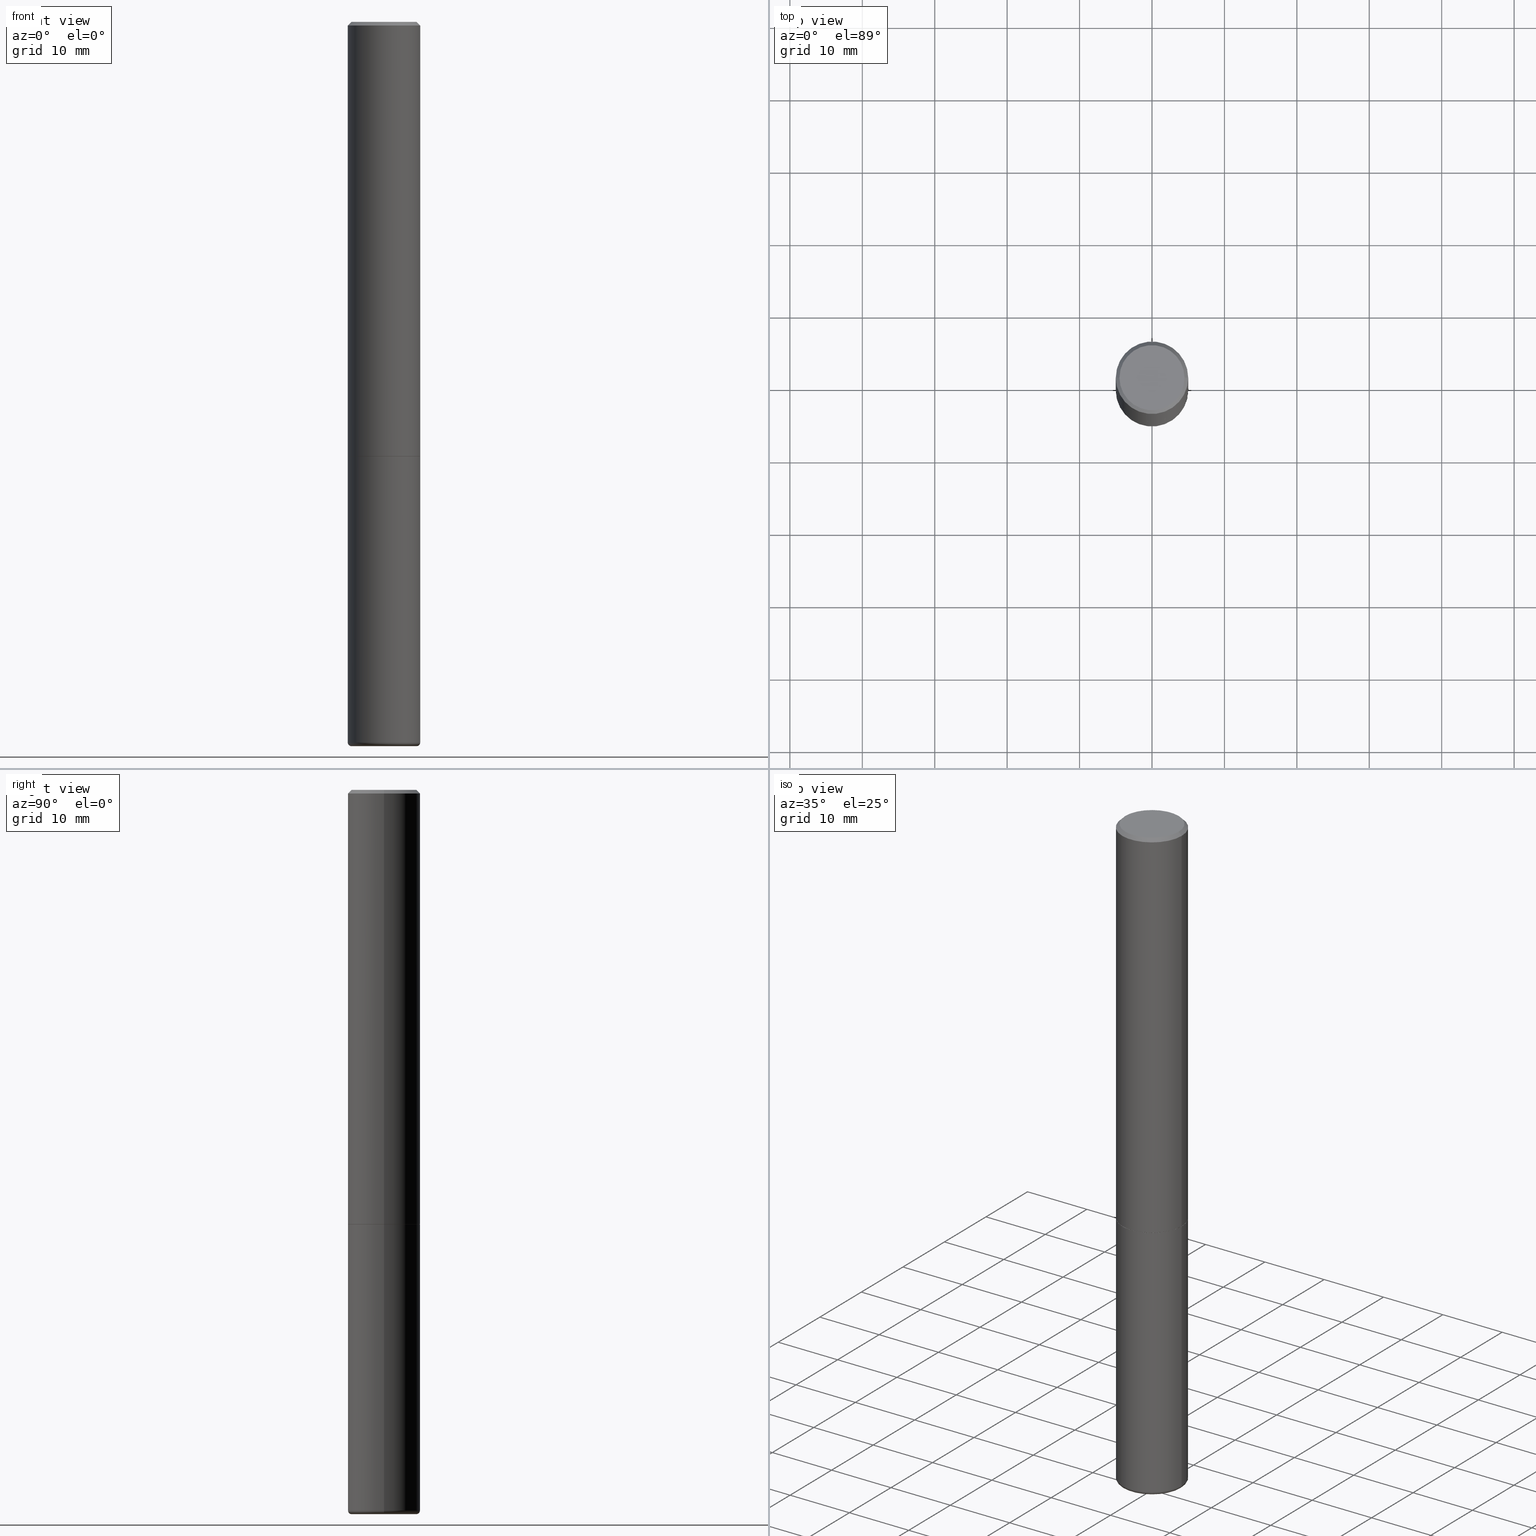
[diagram: canonical four-view strip — front | top / right | iso, engineering-drawing reading convention]
A machine part, canonical four-view strip (front | top / right | iso — engineering-drawing reading convention). The complete STEP part file that produces these views, byte-faithful:
ISO-10303-21;
HEADER;
FILE_DESCRIPTION (( 'STEP AP203' ),
    '1' );
FILE_NAME ('74427.STEP',
    '2024-03-06T15:13:18',
    ( '' ),
    ( '' ),
    'SwSTEP 2.0',
    'SolidWorks 2023',
    '' );
FILE_SCHEMA (( 'CONFIG_CONTROL_DESIGN' ));
ENDSEC;

DATA;
#1 = ORIENTED_EDGE ( 'NONE', *, *, #344, .F. ) ;
#2 = PERSON_AND_ORGANIZATION ( #64, #342 ) ;
#3 = AXIS2_PLACEMENT_3D ( 'NONE', #282, #325, #405 ) ;
#4 = DIRECTION ( 'NONE',  ( -2.445468806185136877E-29, 3.491481338843145188E-15, 1.000000000000000000 ) ) ;
#5 = CC_DESIGN_APPROVAL ( #89, ( #206 ) ) ;
#6 = LINE ( 'NONE', #87, #49 ) ;
#7 = DIRECTION ( 'NONE',  ( -1.000000000000000000, 7.105427357600965571E-15, 0.000000000000000000 ) ) ;
#8 = APPROVAL_ROLE ( '' ) ;
#9 = APPLICATION_CONTEXT ( 'configuration controlled 3d designs of mechanical parts and assemblies' ) ;
#10 = FACE_OUTER_BOUND ( 'NONE', #156, .T. ) ;
#11 = DATE_TIME_ROLE ( 'creation_date' ) ;
#12 = CARTESIAN_POINT ( 'NONE',  ( 0.1768499999999998407, -1.316798864272041549E-15, 2.219626494852302982E-16 ) ) ;
#13 = ORIENTED_EDGE ( 'NONE', *, *, #400, .T. ) ;
#14 = TOROIDAL_SURFACE ( 'NONE', #247, 0.1771500000000000019, 0.01969999999999987733 ) ;
#15 = EDGE_CURVE ( 'NONE', #94, #182, #236, .T. ) ;
#16 = VERTEX_POINT ( 'NONE', #36 ) ;
#17 = CONICAL_SURFACE ( 'NONE', #410, 0.1958499999999999963, 0.7853981633975507526 ) ;
#18 = VERTEX_POINT ( 'NONE', #310 ) ;
#19 = DIRECTION ( 'NONE',  ( -2.445468806185136877E-29, 3.491481338843145188E-15, 1.000000000000000000 ) ) ;
#20 = CARTESIAN_POINT ( 'NONE',  ( -0.1968500000000000527, 1.304766576325678902E-15, -0.02000000000000004205 ) ) ;
#21 = ORIENTED_EDGE ( 'NONE', *, *, #372, .T. ) ;
#22 = DIRECTION ( 'NONE',  ( -1.000000000000000000, 6.982962677686266711E-15, 0.000000000000000000 ) ) ;
#23 = EDGE_CURVE ( 'NONE', #355, #165, #242, .T. ) ;
#24 = CARTESIAN_POINT ( 'NONE',  ( 0.1958499999999999963, -9.615190459040133643E-15, -2.362199999999999633 ) ) ;
#25 = DIRECTION ( 'NONE',  ( 0.7071067811865462405, -7.319954787623251312E-15, -0.7071067811865486830 ) ) ;
#26 = ORIENTED_EDGE ( 'NONE', *, *, #95, .F. ) ;
#27 = AXIS2_PLACEMENT_3D ( 'NONE', #301, #115, #7 ) ;
#28 =( CONVERSION_BASED_UNIT ( 'INCH', #70 ) LENGTH_UNIT ( ) NAMED_UNIT ( #281 ) );
#29 = VERTEX_POINT ( 'NONE', #243 ) ;
#30 =( NAMED_UNIT ( * ) SI_UNIT ( $, .STERADIAN. ) SOLID_ANGLE_UNIT ( ) );
#31 = CARTESIAN_POINT ( 'NONE',  ( 9.579634954469036932E-29, -1.367717984865025539E-14, -3.917300000000000448 ) ) ;
#32 = ORIENTED_EDGE ( 'NONE', *, *, #372, .F. ) ;
#33 = DIRECTION ( 'NONE',  ( 1.000000000000000000, -6.982962677686268288E-15, 0.000000000000000000 ) ) ;
#34 = CARTESIAN_POINT ( 'NONE',  ( 1.234936949548815012E-15, 0.1768499999999998407, -5.064871500317991731E-16 ) ) ;
#35 = ORIENTED_EDGE ( 'NONE', *, *, #413, .T. ) ;
#36 = CARTESIAN_POINT ( 'NONE',  ( 0.1968500000000000250, -9.622173421717819657E-15, -2.362199999999999633 ) ) ;
#37 = APPROVAL ( #398, 'UNSPECIFIED' ) ;
#38 = DIRECTION ( 'NONE',  ( -2.445468806185136597E-29, 3.491481338843145583E-15, 1.000000000000000000 ) ) ;
#39 = EDGE_CURVE ( 'NONE', #18, #355, #339, .T. ) ;
#40 = AXIS2_PLACEMENT_3D ( 'NONE', #169, #103, #59 ) ;
#41 = DIRECTION ( 'NONE',  ( -2.445468806185136597E-29, 3.491481338843145583E-15, 1.000000000000000000 ) ) ;
#42 = PERSON_AND_ORGANIZATION_ROLE ( 'design_supplier' ) ;
#43 = CARTESIAN_POINT ( 'NONE',  ( -0.1958499999999999963, -6.850680816280898078E-15, -2.362199999999999633 ) ) ;
#44 = EDGE_CURVE ( 'NONE', #251, #191, #213, .T. ) ;
#45 = APPROVAL_ROLE ( '' ) ;
#46 = COORDINATED_UNIVERSAL_TIME_OFFSET ( 5, 0, .BEHIND. ) ;
#47 = DIRECTION ( 'NONE',  ( -0.7071067811866199593, 7.493145998870616062E-15, 0.7071067811864750752 ) ) ;
#48 = AXIS2_PLACEMENT_3D ( 'NONE', #328, #38, #33 ) ;
#49 = VECTOR ( 'NONE', #47, 39.37007874015748143 ) ;
#50 = CALENDAR_DATE ( 2024, 6, 3 ) ;
#51 = ORIENTED_EDGE ( 'NONE', *, *, #417, .F. ) ;
#52 = AXIS2_PLACEMENT_3D ( 'NONE', #147, #365, #83 ) ;
#53 = DIRECTION ( 'NONE',  ( -2.445468806185136597E-29, 3.491481338843145583E-15, 1.000000000000000000 ) ) ;
#54 = LOCAL_TIME ( 10, 13, 18.00000000000000000, #222 ) ;
#55 = EDGE_CURVE ( 'NONE', #159, #165, #323, .T. ) ;
#56 = ORIENTED_EDGE ( 'NONE', *, *, #171, .F. ) ;
#57 = EDGE_CURVE ( 'NONE', #202, #29, #143, .T. ) ;
#58 = CARTESIAN_POINT ( 'NONE',  ( -0.1968500000000000250, -9.563675158289009718E-15, -2.362199999999999633 ) ) ;
#59 = DIRECTION ( 'NONE',  ( 1.000000000000000000, -6.982962677686269866E-15, 0.000000000000000000 ) ) ;
#60 = CARTESIAN_POINT ( 'NONE',  ( 5.776686413970529753E-29, -8.247577218615278049E-15, -2.362199999999999633 ) ) ;
#61 = ORIENTED_EDGE ( 'NONE', *, *, #309, .F. ) ;
#62 = EDGE_LOOP ( 'NONE', ( #387, #351, #385, #32 ) ) ;
#63 = DIRECTION ( 'NONE',  ( 1.000000000000000000, -6.982962677686266711E-15, 4.876176775795935793E-29 ) ) ;
#64 = PERSON ( 'UNSPECIFIED', 'UNSPECIFIED', 'UNSPECIFIED', ('UNSPECIFIED'), ('UNSPECIFIED'), ('UNSPECIFIED') ) ;
#65 = CARTESIAN_POINT ( 'NONE',  ( 0.000000000000000000, 0.000000000000000000, 0.000000000000000000 ) ) ;
#66 = PERSON_AND_ORGANIZATION ( #64, #342 ) ;
#67 = ORIENTED_EDGE ( 'NONE', *, *, #197, .F. ) ;
#68 = ORIENTED_EDGE ( 'NONE', *, *, #15, .T. ) ;
#69 = ORIENTED_EDGE ( 'NONE', *, *, #400, .F. ) ;
#70 = LENGTH_MEASURE_WITH_UNIT ( LENGTH_MEASURE( 0.02539999999999999897 ), #231 );
#71 = EDGE_LOOP ( 'NONE', ( #322, #379, #13, #401 ) ) ;
#72 = CARTESIAN_POINT ( 'NONE',  ( -0.1968499999999999417, -1.227847647330649996E-14, -3.917300000000000448 ) ) ;
#73 = LINE ( 'NONE', #293, #335 ) ;
#74 = CLOSED_SHELL ( 'NONE', ( #125, #292, #241, #258, #392, #348, #119, #386 ) ) ;
#75 = CIRCLE ( 'NONE', #366, 0.1958499999999999963 ) ;
#76 = PERSON_AND_ORGANIZATION ( #64, #342 ) ;
#77 = EDGE_CURVE ( 'NONE', #165, #159, #311, .T. ) ;
#78 = CARTESIAN_POINT ( 'NONE',  ( 0.1968500000000001915, -1.374596203102542989E-15, 9.598753983154309266E-30 ) ) ;
#79 = DIRECTION ( 'NONE',  ( -2.445468806185136597E-29, 3.491481338843145583E-15, 1.000000000000000000 ) ) ;
#80 = PERSON_AND_ORGANIZATION ( #64, #342 ) ;
#81 = VECTOR ( 'NONE', #160, 39.37007874015748854 ) ;
#82 = DIRECTION ( 'NONE',  ( -2.445468806185136597E-29, 3.491481338843145583E-15, 1.000000000000000000 ) ) ;
#83 = DIRECTION ( 'NONE',  ( 1.000000000000000000, -6.982962677686261977E-15, 4.883557194083110659E-29 ) ) ;
#84 = EDGE_CURVE ( 'NONE', #191, #251, #104, .T. ) ;
#85 = DATE_TIME_ROLE ( 'classification_date' ) ;
#86 = EDGE_LOOP ( 'NONE', ( #371, #230, #172, #51 ) ) ;
#87 = CARTESIAN_POINT ( 'NONE',  ( -0.1958499999999999963, -6.855979270629121269E-15, -2.362199999999999633 ) ) ;
#88 = AXIS2_PLACEMENT_3D ( 'NONE', #266, #338, #336 ) ;
#89 = APPROVAL ( #131, 'UNSPECIFIED' ) ;
#90 = VECTOR ( 'NONE', #19, 39.37007874015748143 ) ;
#91 = ORIENTED_EDGE ( 'NONE', *, *, #84, .T. ) ;
#92 = ORIENTED_EDGE ( 'NONE', *, *, #77, .F. ) ;
#93 = TOROIDAL_SURFACE ( 'NONE', #52, 0.1771500000000000019, 0.01969999999999987733 ) ;
#94 = VERTEX_POINT ( 'NONE', #43 ) ;
#95 = EDGE_CURVE ( 'NONE', #94, #18, #6, .T. ) ;
#96 = EDGE_LOOP ( 'NONE', ( #35, #345 ) ) ;
#97 = PLANE ( 'NONE',  #237 ) ;
#98 = CYLINDRICAL_SURFACE ( 'NONE', #253, 0.1968500000000001915 ) ;
#99 = ORIENTED_EDGE ( 'NONE', *, *, #23, .F. ) ;
#100 = CARTESIAN_POINT ( 'NONE',  ( 4.890937612370283668E-31, -6.982962677686305168E-17, -0.02000000000000004205 ) ) ;
#101 = DESIGN_CONTEXT ( 'detailed design', #9, 'design' ) ;
#102 = EDGE_LOOP ( 'NONE', ( #307, #133, #374, #61 ) ) ;
#103 = DIRECTION ( 'NONE',  ( -2.445468806185136597E-29, 3.491481338843145583E-15, 1.000000000000000000 ) ) ;
#104 = CIRCLE ( 'NONE', #394, 0.1768499999999998407 ) ;
#105 = AXIS2_PLACEMENT_3D ( 'NONE', #346, #189, #123 ) ;
#106 = PRODUCT ( '74427', '74427', '', ( #246 ) ) ;
#107 = PLANE ( 'NONE',  #155 ) ;
#108 = DIRECTION ( 'NONE',  ( 1.000000000000000000, -6.982962677686266711E-15, 4.876176775795935793E-29 ) ) ;
#109 = EDGE_LOOP ( 'NONE', ( #257, #278, #403, #69 ) ) ;
#110 = VECTOR ( 'NONE', #4, 39.37007874015748143 ) ;
#111 = AXIS2_PLACEMENT_3D ( 'NONE', #118, #361, #114 ) ;
#112 = EDGE_CURVE ( 'NONE', #355, #18, #221, .T. ) ;
#113 = EDGE_CURVE ( 'NONE', #202, #265, #163, .T. ) ;
#114 = DIRECTION ( 'NONE',  ( 1.000000000000000000, -6.982962677686270655E-15, 0.000000000000000000 ) ) ;
#115 = DIRECTION ( 'NONE',  ( 7.105427357601001859E-15, 1.000000000000000000, -3.491481338843145583E-15 ) ) ;
#116 = CIRCLE ( 'NONE', #40, 0.1968499999999999694 ) ;
#117 = LOCAL_TIME ( 10, 13, 18.00000000000000000, #46 ) ;
#118 = CARTESIAN_POINT ( 'NONE',  ( 9.627810689950883669E-29, -1.374596203102546341E-14, -3.937000000000000277 ) ) ;
#119 = ADVANCED_FACE ( 'NONE', ( #10 ), #97, .F. ) ;
#120 = CARTESIAN_POINT ( 'NONE',  ( 5.776686413970529753E-29, -8.247577218615278049E-15, -2.362199999999999633 ) ) ;
#121 = AXIS2_PLACEMENT_3D ( 'NONE', #31, #261, #161 ) ;
#122 = VERTEX_POINT ( 'NONE', #72 ) ;
#123 = DIRECTION ( 'NONE',  ( 1.000000000000000000, 0.000000000000000000, 0.000000000000000000 ) ) ;
#124 = CARTESIAN_POINT ( 'NONE',  ( 0.1968499999999999417, -1.505177605175279857E-14, -3.917300000000000448 ) ) ;
#125 = ADVANCED_FACE ( 'NONE', ( #203 ), #288, .T. ) ;
#126 = DIRECTION ( 'NONE',  ( -2.445468806185136597E-29, 3.491481338843145583E-15, 1.000000000000000000 ) ) ;
#127 = APPLICATION_PROTOCOL_DEFINITION ( 'international standard', 'config_control_design', 1994, #9 ) ;
#128 = AXIS2_PLACEMENT_3D ( 'NONE', #240, #300, #207 ) ;
#129 = DIRECTION ( 'NONE',  ( 1.000000000000000000, -6.982962677686262766E-15, 0.000000000000000000 ) ) ;
#130 = SECURITY_CLASSIFICATION ( '', '', #397 ) ;
#131 = APPROVAL_STATUS ( 'not_yet_approved' ) ;
#132 = DIRECTION ( 'NONE',  ( 1.000000000000000000, -6.982962677686268288E-15, 0.000000000000000000 ) ) ;
#133 = ORIENTED_EDGE ( 'NONE', *, *, #211, .T. ) ;
#134 = LINE ( 'NONE', #321, #228 ) ;
#135 = APPROVAL_DATE_TIME ( #260, #89 ) ;
#136 = FACE_OUTER_BOUND ( 'NONE', #399, .T. ) ;
#137 = AXIS2_PLACEMENT_3D ( 'NONE', #289, #412, #259 ) ;
#138 = AXIS2_PLACEMENT_3D ( 'NONE', #408, #126, #129 ) ;
#139 = PLANE ( 'NONE',  #340 ) ;
#140 = ORIENTED_EDGE ( 'NONE', *, *, #286, .F. ) ;
#141 = EDGE_CURVE ( 'NONE', #29, #122, #196, .T. ) ;
#142 = EDGE_LOOP ( 'NONE', ( #184, #227, #92, #99 ) ) ;
#143 = CIRCLE ( 'NONE', #111, 0.1771500000000000574 ) ;
#144 = CARTESIAN_POINT ( 'NONE',  ( 4.890937612370283668E-31, -6.982962677686305168E-17, -0.02000000000000004205 ) ) ;
#145 = CC_DESIGN_PERSON_AND_ORGANIZATION_ASSIGNMENT ( #66, #284, ( #106 ) ) ;
#146 = DIRECTION ( 'NONE',  ( 1.000000000000000000, -6.982962677686269077E-15, 0.000000000000000000 ) ) ;
#147 = CARTESIAN_POINT ( 'NONE',  ( 9.579634954469036932E-29, -1.367717984865025539E-14, -3.917300000000000448 ) ) ;
#148 = DATE_AND_TIME ( #396, #215 ) ;
#149 = APPROVAL_DATE_TIME ( #176, #409 ) ;
#150 = ORIENTED_EDGE ( 'NONE', *, *, #44, .T. ) ;
#151 = CARTESIAN_POINT ( 'NONE',  ( 5.774240945164344150E-29, -8.244085737276433464E-15, -2.361199999999999743 ) ) ;
#152 = ORIENTED_EDGE ( 'NONE', *, *, #141, .T. ) ;
#153 = ADVANCED_FACE ( 'NONE', ( #331 ), #139, .T. ) ;
#154 = ORIENTED_EDGE ( 'NONE', *, *, #57, .F. ) ;
#155 = AXIS2_PLACEMENT_3D ( 'NONE', #34, #285, #407 ) ;
#156 = EDGE_LOOP ( 'NONE', ( #56, #217 ) ) ;
#157 = CC_DESIGN_PERSON_AND_ORGANIZATION_ASSIGNMENT ( #2, #337, ( #130 ) ) ;
#158 = FACE_OUTER_BOUND ( 'NONE', #71, .T. ) ;
#159 = VERTEX_POINT ( 'NONE', #320 ) ;
#160 = DIRECTION ( 'NONE',  ( -0.7071067811865462405, 2.468850131082243650E-15, -0.7071067811865486830 ) ) ;
#161 = DIRECTION ( 'NONE',  ( 1.000000000000000000, -6.982962677686269866E-15, 0.000000000000000000 ) ) ;
#162 = AXIS2_PLACEMENT_3D ( 'NONE', #298, #82, #270 ) ;
#163 = CIRCLE ( 'NONE', #294, 0.01969999999999989468 ) ;
#164 = APPROVAL_PERSON_ORGANIZATION ( #273, #37, #8 ) ;
#165 = VERTEX_POINT ( 'NONE', #352 ) ;
#166 = DIRECTION ( 'NONE',  ( -2.445468806185136877E-29, 3.491481338843145188E-15, 1.000000000000000000 ) ) ;
#167 = LINE ( 'NONE', #383, #90 ) ;
#168 = COORDINATED_UNIVERSAL_TIME_OFFSET ( 5, 0, .BEHIND. ) ;
#169 = CARTESIAN_POINT ( 'NONE',  ( 9.579634954469036932E-29, -1.367717984865025539E-14, -3.917300000000000448 ) ) ;
#170 = DIRECTION ( 'NONE',  ( -2.445468806185136597E-29, 3.491481338843145583E-15, 1.000000000000000000 ) ) ;
#171 = EDGE_CURVE ( 'NONE', #182, #94, #75, .T. ) ;
#172 = ORIENTED_EDGE ( 'NONE', *, *, #309, .T. ) ;
#173 = VECTOR ( 'NONE', #166, 39.37007874015748143 ) ;
#174 = CARTESIAN_POINT ( 'NONE',  ( -5.428027354543142984E-45, 7.749784485978325769E-31, 2.219626494852213988E-16 ) ) ;
#175 = DIRECTION ( 'NONE',  ( 1.000000000000000000, -6.982962677686268288E-15, 0.000000000000000000 ) ) ;
#176 = DATE_AND_TIME ( #364, #333 ) ;
#177 = DIRECTION ( 'NONE',  ( 1.000000000000000000, -6.982962677686266711E-15, 0.000000000000000000 ) ) ;
#178 = ORIENTED_EDGE ( 'NONE', *, *, #197, .T. ) ;
#179 = DIRECTION ( 'NONE',  ( 1.000000000000000000, -6.982962677686266711E-15, 0.000000000000000000 ) ) ;
#180 = CC_DESIGN_DATE_AND_TIME_ASSIGNMENT ( #181, #85, ( #130 ) ) ;
#181 = DATE_AND_TIME ( #368, #117 ) ;
#182 = VERTEX_POINT ( 'NONE', #24 ) ;
#183 = ADVANCED_FACE ( 'NONE', ( #375 ), #93, .T. ) ;
#184 = ORIENTED_EDGE ( 'NONE', *, *, #112, .T. ) ;
#185 = LINE ( 'NONE', #291, #389 ) ;
#186 = CIRCLE ( 'NONE', #138, 0.1968500000000000250 ) ;
#187 = PRODUCT_DEFINITION_FORMATION_WITH_SPECIFIED_SOURCE ( 'ANY', '', #106, .NOT_KNOWN. ) ;
#188 = DIRECTION ( 'NONE',  ( -1.000000000000000000, 6.982962677686265922E-15, -4.876176775795935793E-29 ) ) ;
#189 = DIRECTION ( 'NONE',  ( 0.000000000000000000, 0.000000000000000000, 1.000000000000000000 ) ) ;
#190 = DIRECTION ( 'NONE',  ( 1.000000000000000000, -6.982962677686266711E-15, 4.876176775795935793E-29 ) ) ;
#191 = VERTEX_POINT ( 'NONE', #12 ) ;
#192 = FACE_OUTER_BOUND ( 'NONE', #109, .T. ) ;
#193 = DIRECTION ( 'NONE',  ( -2.445468806185136597E-29, 3.491481338843145583E-15, 1.000000000000000000 ) ) ;
#194 = FACE_OUTER_BOUND ( 'NONE', #96, .T. ) ;
#195 = DIRECTION ( 'NONE',  ( -2.438088387897960049E-29, 3.491481338843145188E-15, 1.000000000000000000 ) ) ;
#196 = CIRCLE ( 'NONE', #27, 0.01969999999999989468 ) ;
#197 = EDGE_CURVE ( 'NONE', #29, #202, #299, .T. ) ;
#198 = EDGE_LOOP ( 'NONE', ( #26, #68, #21, #250 ) ) ;
#199 = FACE_OUTER_BOUND ( 'NONE', #102, .T. ) ;
#200 = ORIENTED_EDGE ( 'NONE', *, *, #113, .T. ) ;
#201 = FACE_OUTER_BOUND ( 'NONE', #86, .T. ) ;
#202 = VERTEX_POINT ( 'NONE', #406 ) ;
#203 = FACE_OUTER_BOUND ( 'NONE', #62, .T. ) ;
#204 = CC_DESIGN_DATE_AND_TIME_ASSIGNMENT ( #249, #11, ( #206 ) ) ;
#205 = CONICAL_SURFACE ( 'NONE', #3, 0.1968500000000000527, 0.7853981633974466137 ) ;
#206 = PRODUCT_DEFINITION ( 'UNKNOWN', '', #187, #101 ) ;
#207 = DIRECTION ( 'NONE',  ( 1.000000000000000000, -6.982962677686266711E-15, 0.000000000000000000 ) ) ;
#208 = AXIS2_PLACEMENT_3D ( 'NONE', #391, #170, #108 ) ;
#209 = APPROVAL_STATUS ( 'not_yet_approved' ) ;
#210 = ORIENTED_EDGE ( 'NONE', *, *, #39, .T. ) ;
#211 = EDGE_CURVE ( 'NONE', #122, #216, #167, .T. ) ;
#212 = ORIENTED_EDGE ( 'NONE', *, *, #113, .F. ) ;
#213 = CIRCLE ( 'NONE', #88, 0.1768499999999998407 ) ;
#214 = AXIS2_PLACEMENT_3D ( 'NONE', #151, #245, #146 ) ;
#215 = LOCAL_TIME ( 10, 13, 18.00000000000000000, #244 ) ;
#216 = VERTEX_POINT ( 'NONE', #58 ) ;
#217 = ORIENTED_EDGE ( 'NONE', *, *, #15, .F. ) ;
#218 = FACE_OUTER_BOUND ( 'NONE', #264, .T. ) ;
#219 = LINE ( 'NONE', #20, #81 ) ;
#220 = PERSON_AND_ORGANIZATION ( #64, #342 ) ;
#221 = CIRCLE ( 'NONE', #214, 0.1968500000000002748 ) ;
#222 = COORDINATED_UNIVERSAL_TIME_OFFSET ( 5, 0, .BEHIND. ) ;
#223 = DIRECTION ( 'NONE',  ( 2.438088387897960049E-29, -3.491481338843145188E-15, -1.000000000000000000 ) ) ;
#224 = CYLINDRICAL_SURFACE ( 'NONE', #402, 0.1968500000000001915 ) ;
#225 = EDGE_CURVE ( 'NONE', #122, #265, #272, .T. ) ;
#226 = CARTESIAN_POINT ( 'NONE',  ( -0.1768499999999998407, 1.269851762937247450E-15, 2.219626494852126227E-16 ) ) ;
#227 = ORIENTED_EDGE ( 'NONE', *, *, #286, .T. ) ;
#228 = VECTOR ( 'NONE', #25, 39.37007874015748854 ) ;
#229 = UNCERTAINTY_MEASURE_WITH_UNIT (LENGTH_MEASURE( 1.000000000000000082E-05 ), #28, 'distance_accuracy_value', 'NONE');
#230 = ORIENTED_EDGE ( 'NONE', *, *, #225, .T. ) ;
#231 =( LENGTH_UNIT ( ) NAMED_UNIT ( * ) SI_UNIT ( $, .METRE. ) );
#232 = ADVANCED_BREP_SHAPE_REPRESENTATION ( '74427', ( #363, #239, #105 ), #378 ) ;
#233 = DIRECTION ( 'NONE',  ( -2.445468806185136597E-29, 3.491481338843145583E-15, 1.000000000000000000 ) ) ;
#234 = CARTESIAN_POINT ( 'NONE',  ( 9.627810689950883669E-29, -1.374596203102546341E-14, -3.937000000000000277 ) ) ;
#235 = CARTESIAN_POINT ( 'NONE',  ( 9.627810689950883669E-29, -1.374596203102546341E-14, -3.937000000000000277 ) ) ;
#236 = CIRCLE ( 'NONE', #48, 0.1958499999999999963 ) ;
#237 = AXIS2_PLACEMENT_3D ( 'NONE', #120, #195, #358 ) ;
#238 = APPROVAL_PERSON_ORGANIZATION ( #276, #409, #45 ) ;
#239 = MANIFOLD_SOLID_BREP ( 'Body-Move/Copy2[2]', #74 ) ;
#240 = CARTESIAN_POINT ( 'NONE',  ( 4.890937612370283668E-31, -6.982962677686305168E-17, -0.02000000000000004205 ) ) ;
#241 = ADVANCED_FACE ( 'NONE', ( #192 ), #356, .T. ) ;
#242 = LINE ( 'NONE', #78, #110 ) ;
#243 = CARTESIAN_POINT ( 'NONE',  ( -0.1771500000000000574, -1.238285602396647324E-14, -3.937000000000000277 ) ) ;
#244 = COORDINATED_UNIVERSAL_TIME_OFFSET ( 5, 0, .BEHIND. ) ;
#245 = DIRECTION ( 'NONE',  ( -2.445468806185136597E-29, 3.491481338843145583E-15, 1.000000000000000000 ) ) ;
#246 = MECHANICAL_CONTEXT ( 'NONE', #393, 'mechanical' ) ;
#247 = AXIS2_PLACEMENT_3D ( 'NONE', #287, #411, #382 ) ;
#248 = CC_DESIGN_PERSON_AND_ORGANIZATION_ASSIGNMENT ( #283, #377, ( #206 ) ) ;
#249 = DATE_AND_TIME ( #50, #54 ) ;
#250 = ORIENTED_EDGE ( 'NONE', *, *, #39, .F. ) ;
#251 = VERTEX_POINT ( 'NONE', #226 ) ;
#252 = PRODUCT_DEFINITION_SHAPE ( 'NONE', 'NONE',  #206 ) ;
#253 = AXIS2_PLACEMENT_3D ( 'NONE', #350, #316, #190 ) ;
#254 = APPROVAL_PERSON_ORGANIZATION ( #220, #89, #256 ) ;
#255 = CARTESIAN_POINT ( 'NONE',  ( 5.776686413970529753E-29, -8.247577218615278049E-15, -2.362199999999999633 ) ) ;
#256 = APPROVAL_ROLE ( '' ) ;
#257 = ORIENTED_EDGE ( 'NONE', *, *, #84, .F. ) ;
#258 = ADVANCED_FACE ( 'NONE', ( #158 ), #205, .T. ) ;
#259 = DIRECTION ( 'NONE',  ( -1.000000000000000000, 6.982962677686265922E-15, -4.876176775795935793E-29 ) ) ;
#260 = DATE_AND_TIME ( #359, #313 ) ;
#261 = DIRECTION ( 'NONE',  ( -2.445468806185136597E-29, 3.491481338843145583E-15, 1.000000000000000000 ) ) ;
#262 = DIRECTION ( 'NONE',  ( -2.445468806185136597E-29, 3.491481338843145583E-15, 1.000000000000000000 ) ) ;
#263 = CARTESIAN_POINT ( 'NONE',  ( 0.1968499999999999694, -1.374596203102541411E-15, 9.598753983154298056E-30 ) ) ;
#264 = EDGE_LOOP ( 'NONE', ( #341, #152, #1, #212 ) ) ;
#265 = VERTEX_POINT ( 'NONE', #124 ) ;
#266 = CARTESIAN_POINT ( 'NONE',  ( -5.428027354543142984E-45, 7.749784485978325769E-31, 2.219626494852213988E-16 ) ) ;
#267 = AXIS2_PLACEMENT_3D ( 'NONE', #234, #332, #329 ) ;
#268 = ADVANCED_FACE ( 'NONE', ( #218 ), #14, .T. ) ;
#269 = CARTESIAN_POINT ( 'NONE',  ( 0.1771500000000000019, -1.491421168700237936E-14, -3.917300000000000448 ) ) ;
#270 = DIRECTION ( 'NONE',  ( 1.000000000000000000, -6.982962677686269077E-15, 0.000000000000000000 ) ) ;
#271 = PRODUCT_RELATED_PRODUCT_CATEGORY ( 'detail', '', ( #106 ) ) ;
#272 = CIRCLE ( 'NONE', #121, 0.1968499999999999694 ) ;
#273 = PERSON_AND_ORGANIZATION ( #64, #342 ) ;
#274 = EDGE_LOOP ( 'NONE', ( #154, #67 ) ) ;
#275 = DIRECTION ( 'NONE',  ( 1.000000000000000000, -6.982962677686266711E-15, 4.870572768024644056E-29 ) ) ;
#276 = PERSON_AND_ORGANIZATION ( #64, #342 ) ;
#277 = ORIENTED_EDGE ( 'NONE', *, *, #55, .F. ) ;
#278 = ORIENTED_EDGE ( 'NONE', *, *, #327, .T. ) ;
#279 = AXIS2_PLACEMENT_3D ( 'NONE', #65, #233, #326 ) ;
#280 = ORIENTED_EDGE ( 'NONE', *, *, #225, .F. ) ;
#281 = DIMENSIONAL_EXPONENTS ( 1.000000000000000000, 0.000000000000000000, 0.000000000000000000, 0.000000000000000000, 0.000000000000000000, 0.000000000000000000, 0.000000000000000000 ) ;
#282 = CARTESIAN_POINT ( 'NONE',  ( 4.890937612370283668E-31, -6.982962677686305168E-17, -0.02000000000000004205 ) ) ;
#283 = PERSON_AND_ORGANIZATION ( #64, #342 ) ;
#284 = PERSON_AND_ORGANIZATION_ROLE ( 'design_owner' ) ;
#285 = DIRECTION ( 'NONE',  ( 2.438088387897960049E-29, -3.491481338843145188E-15, -1.000000000000000000 ) ) ;
#286 = EDGE_CURVE ( 'NONE', #18, #159, #185, .T. ) ;
#287 = CARTESIAN_POINT ( 'NONE',  ( 9.579634954469036932E-29, -1.367717984865025539E-14, -3.917300000000000448 ) ) ;
#288 = CONICAL_SURFACE ( 'NONE', #367, 0.1958499999999999963, 0.7853981633975507526 ) ;
#289 = CARTESIAN_POINT ( 'NONE',  ( 5.776686413970529753E-29, -8.247577218615278049E-15, -2.362199999999999633 ) ) ;
#290 = LINE ( 'NONE', #263, #173 ) ;
#291 = CARTESIAN_POINT ( 'NONE',  ( -0.1968500000000001915, 1.398703375343758577E-15, -9.682923725166790684E-30 ) ) ;
#292 = ADVANCED_FACE ( 'NONE', ( #317 ), #224, .T. ) ;
#293 = CARTESIAN_POINT ( 'NONE',  ( 0.1958499999999999963, -9.615190459040133643E-15, -2.362199999999999633 ) ) ;
#294 = AXIS2_PLACEMENT_3D ( 'NONE', #269, #395, #177 ) ;
#295 = ORIENTED_EDGE ( 'NONE', *, *, #23, .T. ) ;
#296 = FACE_OUTER_BOUND ( 'NONE', #376, .T. ) ;
#297 = ADVANCED_FACE ( 'NONE', ( #194 ), #388, .F. ) ;
#298 = CARTESIAN_POINT ( 'NONE',  ( 5.774240945164344150E-29, -8.244085737276433464E-15, -2.361199999999999743 ) ) ;
#299 = CIRCLE ( 'NONE', #267, 0.1771500000000000574 ) ;
#300 = DIRECTION ( 'NONE',  ( -2.445468806185136597E-29, 3.491481338843145583E-15, 1.000000000000000000 ) ) ;
#301 = CARTESIAN_POINT ( 'NONE',  ( -0.1771500000000000019, -1.241845339225123848E-14, -3.917300000000000448 ) ) ;
#302 = PERSON_AND_ORGANIZATION_ROLE ( 'creator' ) ;
#303 = EDGE_LOOP ( 'NONE', ( #373, #178, #200, #280 ) ) ;
#304 = CLOSED_SHELL ( 'NONE', ( #360, #268, #297, #334, #183, #153 ) ) ;
#305 = AXIS2_PLACEMENT_3D ( 'NONE', #144, #41, #179 ) ;
#306 = APPROVAL_DATE_TIME ( #148, #37 ) ;
#307 = ORIENTED_EDGE ( 'NONE', *, *, #344, .T. ) ;
#308 = CC_DESIGN_APPROVAL ( #37, ( #130 ) ) ;
#309 = EDGE_CURVE ( 'NONE', #265, #16, #290, .T. ) ;
#310 = CARTESIAN_POINT ( 'NONE',  ( -0.1968500000000002748, -2.758254306682887043E-15, -2.361199999999999743 ) ) ;
#311 = CIRCLE ( 'NONE', #128, 0.1968500000000000527 ) ;
#312 = DIRECTION ( 'NONE',  ( -2.445468806185136877E-29, 3.491481338843145188E-15, 1.000000000000000000 ) ) ;
#313 = LOCAL_TIME ( 10, 13, 18.00000000000000000, #168 ) ;
#314 = DIRECTION ( 'NONE',  ( 1.000000000000000000, -6.982962677686268288E-15, 0.000000000000000000 ) ) ;
#315 = CC_DESIGN_PERSON_AND_ORGANIZATION_ASSIGNMENT ( #80, #302, ( #187 ) ) ;
#316 = DIRECTION ( 'NONE',  ( -2.445468806185136597E-29, 3.491481338843145583E-15, 1.000000000000000000 ) ) ;
#317 = FACE_OUTER_BOUND ( 'NONE', #142, .T. ) ;
#318 = CARTESIAN_POINT ( 'NONE',  ( 5.776686413970529753E-29, -8.247577218615278049E-15, -2.362199999999999633 ) ) ;
#319 = DIRECTION ( 'NONE',  ( 2.445468806185136597E-29, -3.491481338843145583E-15, -1.000000000000000000 ) ) ;
#320 = CARTESIAN_POINT ( 'NONE',  ( -0.1968500000000000527, 1.304766576325678902E-15, -0.02000000000000004205 ) ) ;
#321 = CARTESIAN_POINT ( 'NONE',  ( 0.1968500000000000527, -1.420318657638189516E-15, -0.02000000000000004205 ) ) ;
#322 = ORIENTED_EDGE ( 'NONE', *, *, #327, .F. ) ;
#323 = CIRCLE ( 'NONE', #305, 0.1968500000000000527 ) ;
#324 = AXIS2_PLACEMENT_3D ( 'NONE', #100, #319, #22 ) ;
#325 = DIRECTION ( 'NONE',  ( 2.445468806185136597E-29, -3.491481338843145583E-15, -1.000000000000000000 ) ) ;
#326 = DIRECTION ( 'NONE',  ( 1.000000000000000000, -6.982962677686266711E-15, 4.876176775795935793E-29 ) ) ;
#327 = EDGE_CURVE ( 'NONE', #191, #165, #134, .T. ) ;
#328 = CARTESIAN_POINT ( 'NONE',  ( 5.776686413970529753E-29, -8.247577218615278049E-15, -2.362199999999999633 ) ) ;
#329 = DIRECTION ( 'NONE',  ( 1.000000000000000000, -6.982962677686270655E-15, 0.000000000000000000 ) ) ;
#330 = CYLINDRICAL_SURFACE ( 'NONE', #279, 0.1968499999999999694 ) ;
#331 = FACE_OUTER_BOUND ( 'NONE', #274, .T. ) ;
#332 = DIRECTION ( 'NONE',  ( -2.445468806185136597E-29, 3.491481338843145583E-15, 1.000000000000000000 ) ) ;
#333 = LOCAL_TIME ( 10, 13, 18.00000000000000000, #384 ) ;
#334 = ADVANCED_FACE ( 'NONE', ( #201 ), #415, .T. ) ;
#335 = VECTOR ( 'NONE', #414, 39.37007874015748143 ) ;
#336 = DIRECTION ( 'NONE',  ( 1.000000000000000000, -6.982962677686266711E-15, 4.870572768024644056E-29 ) ) ;
#337 = PERSON_AND_ORGANIZATION_ROLE ( 'classification_officer' ) ;
#338 = DIRECTION ( 'NONE',  ( -2.445468806185136597E-29, 3.491481338843145583E-15, 1.000000000000000000 ) ) ;
#339 = CIRCLE ( 'NONE', #162, 0.1968500000000002748 ) ;
#340 = AXIS2_PLACEMENT_3D ( 'NONE', #235, #223, #188 ) ;
#341 = ORIENTED_EDGE ( 'NONE', *, *, #57, .T. ) ;
#342 = ORGANIZATION ( 'UNSPECIFIED', 'UNSPECIFIED', '' ) ;
#343 = APPLICATION_PROTOCOL_DEFINITION ( 'international standard', 'config_control_design', 1994, #393 ) ;
#344 = EDGE_CURVE ( 'NONE', #265, #122, #116, .T. ) ;
#345 = ORIENTED_EDGE ( 'NONE', *, *, #417, .T. ) ;
#346 = CARTESIAN_POINT ( 'NONE',  ( 0.000000000000000000, 0.000000000000000000, 0.000000000000000000 ) ) ;
#347 = AXIS2_PLACEMENT_3D ( 'NONE', #255, #53, #381 ) ;
#348 = ADVANCED_FACE ( 'NONE', ( #418 ), #17, .T. ) ;
#349 = CC_DESIGN_SECURITY_CLASSIFICATION ( #130, ( #187 ) ) ;
#350 = CARTESIAN_POINT ( 'NONE',  ( 0.000000000000000000, 0.000000000000000000, 0.000000000000000000 ) ) ;
#351 = ORIENTED_EDGE ( 'NONE', *, *, #95, .T. ) ;
#352 = CARTESIAN_POINT ( 'NONE',  ( 0.1968500000000000527, -1.420318657638189516E-15, -0.02000000000000004205 ) ) ;
#353 = DIRECTION ( 'NONE',  ( -2.445468806185136597E-29, 3.491481338843145583E-15, 1.000000000000000000 ) ) ;
#354 = CARTESIAN_POINT ( 'NONE',  ( 0.1968500000000002748, -9.618681940378978228E-15, -2.361199999999999743 ) ) ;
#355 = VERTEX_POINT ( 'NONE', #354 ) ;
#356 = CONICAL_SURFACE ( 'NONE', #324, 0.1968500000000000527, 0.7853981633974466137 ) ;
#357 =( NAMED_UNIT ( * ) PLANE_ANGLE_UNIT ( ) SI_UNIT ( $, .RADIAN. ) );
#358 = DIRECTION ( 'NONE',  ( 1.000000000000000000, -6.982962677686265922E-15, 4.876176775795935793E-29 ) ) ;
#359 = CALENDAR_DATE ( 2024, 6, 3 ) ;
#360 = ADVANCED_FACE ( 'NONE', ( #199 ), #330, .T. ) ;
#361 = DIRECTION ( 'NONE',  ( -2.445468806185136597E-29, 3.491481338843145583E-15, 1.000000000000000000 ) ) ;
#362 = SHAPE_DEFINITION_REPRESENTATION ( #252, #232 ) ;
#363 = MANIFOLD_SOLID_BREP ( 'Body-Move/Copy2[1]', #304 ) ;
#364 = CALENDAR_DATE ( 2024, 6, 3 ) ;
#365 = DIRECTION ( 'NONE',  ( -2.445468806185136597E-29, 3.491481338843145583E-15, 1.000000000000000000 ) ) ;
#366 = AXIS2_PLACEMENT_3D ( 'NONE', #60, #193, #314 ) ;
#367 = AXIS2_PLACEMENT_3D ( 'NONE', #318, #79, #175 ) ;
#368 = CALENDAR_DATE ( 2024, 6, 3 ) ;
#369 = CC_DESIGN_PERSON_AND_ORGANIZATION_ASSIGNMENT ( #76, #42, ( #187 ) ) ;
#370 = DIRECTION ( 'NONE',  ( -2.445468806185136597E-29, 3.491481338843145583E-15, 1.000000000000000000 ) ) ;
#371 = ORIENTED_EDGE ( 'NONE', *, *, #211, .F. ) ;
#372 = EDGE_CURVE ( 'NONE', #182, #355, #73, .T. ) ;
#373 = ORIENTED_EDGE ( 'NONE', *, *, #141, .F. ) ;
#374 = ORIENTED_EDGE ( 'NONE', *, *, #413, .F. ) ;
#375 = FACE_OUTER_BOUND ( 'NONE', #303, .T. ) ;
#376 = EDGE_LOOP ( 'NONE', ( #140, #210, #295, #277 ) ) ;
#377 = PERSON_AND_ORGANIZATION_ROLE ( 'creator' ) ;
#378 =( GEOMETRIC_REPRESENTATION_CONTEXT ( 3 ) GLOBAL_UNCERTAINTY_ASSIGNED_CONTEXT ( ( #229 ) ) GLOBAL_UNIT_ASSIGNED_CONTEXT ( ( #28, #357, #30 ) ) REPRESENTATION_CONTEXT ( 'NONE', 'WORKASPACE' ) );
#379 = ORIENTED_EDGE ( 'NONE', *, *, #44, .F. ) ;
#380 = CARTESIAN_POINT ( 'NONE',  ( 5.776686413970529753E-29, -8.247577218615278049E-15, -2.362199999999999633 ) ) ;
#381 = DIRECTION ( 'NONE',  ( 1.000000000000000000, -6.982962677686262766E-15, 0.000000000000000000 ) ) ;
#382 = DIRECTION ( 'NONE',  ( 1.000000000000000000, -6.982962677686261977E-15, 4.883557194083110659E-29 ) ) ;
#383 = CARTESIAN_POINT ( 'NONE',  ( -0.1968499999999999694, 1.398703375343756999E-15, -9.682923725166782276E-30 ) ) ;
#384 = COORDINATED_UNIVERSAL_TIME_OFFSET ( 5, 0, .BEHIND. ) ;
#385 = ORIENTED_EDGE ( 'NONE', *, *, #112, .F. ) ;
#386 = ADVANCED_FACE ( 'NONE', ( #136 ), #107, .F. ) ;
#387 = ORIENTED_EDGE ( 'NONE', *, *, #171, .T. ) ;
#388 = PLANE ( 'NONE',  #137 ) ;
#389 = VECTOR ( 'NONE', #312, 39.37007874015748143 ) ;
#390 = CC_DESIGN_APPROVAL ( #409, ( #187 ) ) ;
#391 = CARTESIAN_POINT ( 'NONE',  ( 0.000000000000000000, 0.000000000000000000, 0.000000000000000000 ) ) ;
#392 = ADVANCED_FACE ( 'NONE', ( #296 ), #98, .T. ) ;
#393 = APPLICATION_CONTEXT ( 'configuration controlled 3d designs of mechanical parts and assemblies' ) ;
#394 = AXIS2_PLACEMENT_3D ( 'NONE', #174, #370, #275 ) ;
#395 = DIRECTION ( 'NONE',  ( -6.982962677686266711E-15, -1.000000000000000000, 3.491481338843145583E-15 ) ) ;
#396 = CALENDAR_DATE ( 2024, 6, 3 ) ;
#397 = SECURITY_CLASSIFICATION_LEVEL ( 'unclassified' ) ;
#398 = APPROVAL_STATUS ( 'not_yet_approved' ) ;
#399 = EDGE_LOOP ( 'NONE', ( #150, #91 ) ) ;
#400 = EDGE_CURVE ( 'NONE', #251, #159, #219, .T. ) ;
#401 = ORIENTED_EDGE ( 'NONE', *, *, #55, .T. ) ;
#402 = AXIS2_PLACEMENT_3D ( 'NONE', #404, #353, #63 ) ;
#403 = ORIENTED_EDGE ( 'NONE', *, *, #77, .T. ) ;
#404 = CARTESIAN_POINT ( 'NONE',  ( 0.000000000000000000, 0.000000000000000000, 0.000000000000000000 ) ) ;
#405 = DIRECTION ( 'NONE',  ( -1.000000000000000000, 6.982962677686266711E-15, 0.000000000000000000 ) ) ;
#406 = CARTESIAN_POINT ( 'NONE',  ( 0.1771500000000000574, -1.498299386937758739E-14, -3.937000000000000277 ) ) ;
#407 = DIRECTION ( 'NONE',  ( -1.000000000000000000, 6.982962677686265922E-15, -4.876176775795935793E-29 ) ) ;
#408 = CARTESIAN_POINT ( 'NONE',  ( 5.776686413970529753E-29, -8.247577218615278049E-15, -2.362199999999999633 ) ) ;
#409 = APPROVAL ( #209, 'UNSPECIFIED' ) ;
#410 = AXIS2_PLACEMENT_3D ( 'NONE', #380, #262, #132 ) ;
#411 = DIRECTION ( 'NONE',  ( -2.445468806185136597E-29, 3.491481338843145583E-15, 1.000000000000000000 ) ) ;
#412 = DIRECTION ( 'NONE',  ( 2.438088387897960049E-29, -3.491481338843145188E-15, -1.000000000000000000 ) ) ;
#413 = EDGE_CURVE ( 'NONE', #16, #216, #186, .T. ) ;
#414 = DIRECTION ( 'NONE',  ( 0.7071067811866199593, -2.468850131083015945E-15, 0.7071067811864750752 ) ) ;
#415 = CYLINDRICAL_SURFACE ( 'NONE', #208, 0.1968499999999999694 ) ;
#416 = CIRCLE ( 'NONE', #347, 0.1968500000000000250 ) ;
#417 = EDGE_CURVE ( 'NONE', #216, #16, #416, .T. ) ;
#418 = FACE_OUTER_BOUND ( 'NONE', #198, .T. ) ;
ENDSEC;
END-ISO-10303-21;
